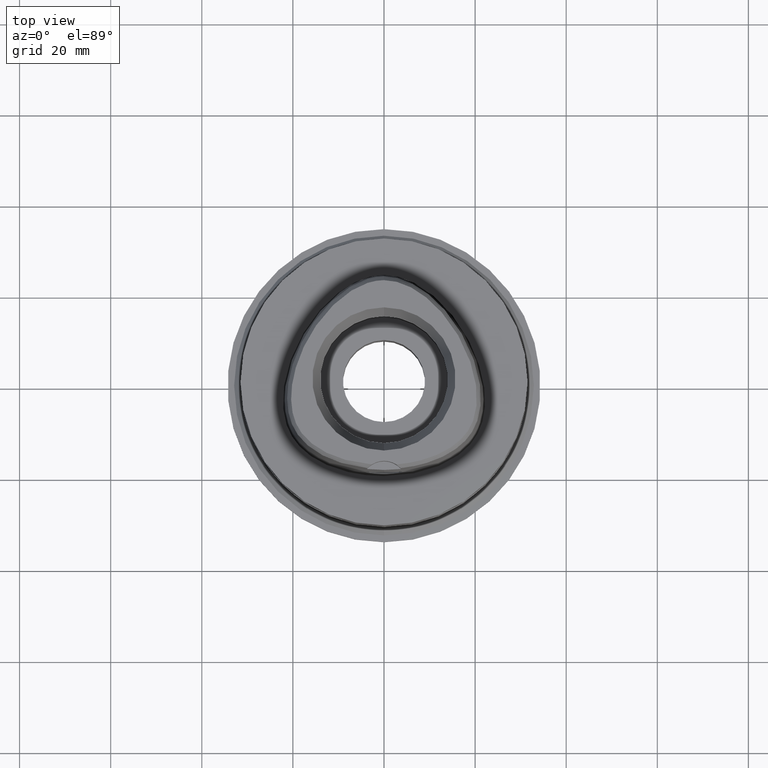
[diagram: clean part render]
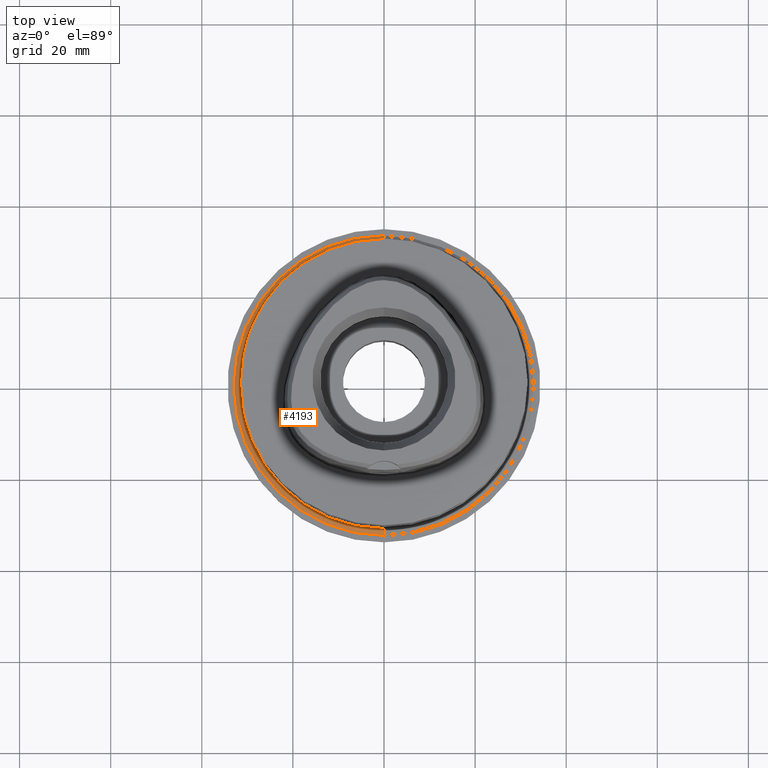
[diagram: same view with one face highlighted and labeled with its STEP entity id]
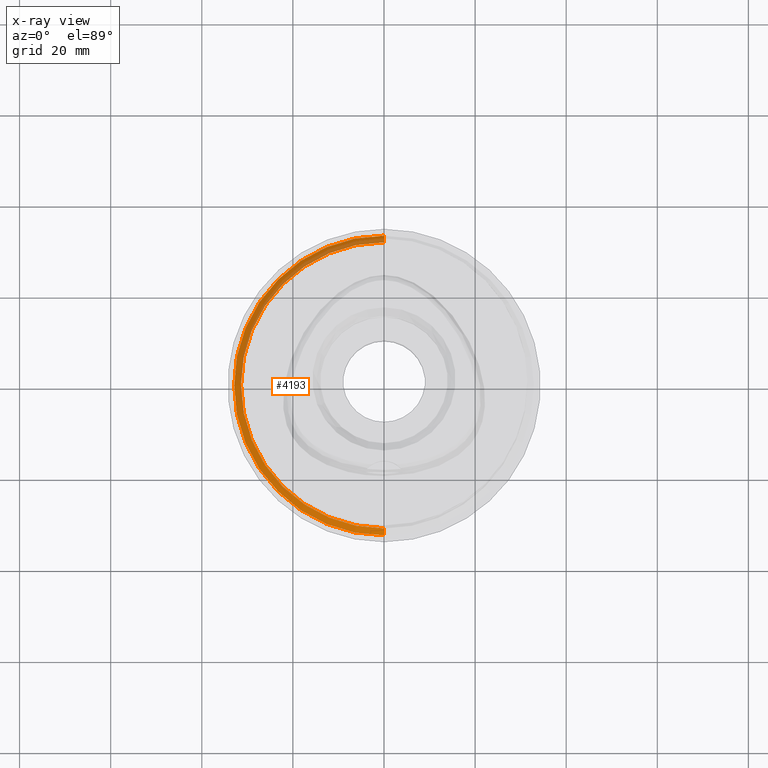
[diagram: x-ray of the same camera — body ghosted, the highlighted face saturated]
A machine part, top view. The second image highlights one B-rep face of the part: STEP entity #4193.
The next image is the same camera in x-ray: the body ghosted, the highlighted face saturated — about 20% of this face is hidden behind the body in this view.
In plain terms, the highlighted conical surface has half-angle 45 deg.
Its self-contained STEP definition (entity closure, byte-faithful):
#567=DIRECTION('',(0.E0,7.071067811866E-1,-7.071067811865E-1));
#568=VECTOR('',#567,2.121320343560E0);
#569=CARTESIAN_POINT('',(0.E0,3.14E1,-4.44E1));
#570=LINE('',#569,#568);
#582=CARTESIAN_POINT('',(0.E0,0.E0,-4.44E1));
#583=DIRECTION('',(0.E0,0.E0,1.E0));
#584=DIRECTION('',(0.E0,1.E0,0.E0));
#585=AXIS2_PLACEMENT_3D('',#582,#583,#584);
#590=DIRECTION('',(0.E0,-7.071067811866E-1,-7.071067811865E-1));
#591=VECTOR('',#590,2.121320343560E0);
#592=CARTESIAN_POINT('',(0.E0,-3.14E1,-4.44E1));
#593=LINE('',#592,#591);
#621=CARTESIAN_POINT('',(0.E0,0.E0,-4.59E1));
#622=DIRECTION('',(0.E0,0.E0,1.E0));
#623=DIRECTION('',(0.E0,1.E0,0.E0));
#624=AXIS2_PLACEMENT_3D('',#621,#622,#623);
#3041=CARTESIAN_POINT('',(0.E0,3.14E1,-4.44E1));
#3042=VERTEX_POINT('',#3041);
#3043=CARTESIAN_POINT('',(0.E0,-3.14E1,-4.44E1));
#3044=VERTEX_POINT('',#3043);
#3045=CARTESIAN_POINT('',(0.E0,3.29E1,-4.59E1));
#3046=VERTEX_POINT('',#3045);
#3047=CARTESIAN_POINT('',(0.E0,-3.29E1,-4.59E1));
#3048=VERTEX_POINT('',#3047);
#4181=CARTESIAN_POINT('',(0.E0,0.E0,-4.515E1));
#4182=DIRECTION('',(0.E0,0.E0,-1.E0));
#4183=DIRECTION('',(0.E0,-1.E0,0.E0));
#4184=AXIS2_PLACEMENT_3D('',#4181,#4182,#4183);
#4185=CONICAL_SURFACE('',#4184,3.215E1,4.5E1);
#4186=ORIENTED_EDGE('',*,*,#4171,.F.);
#4187=ORIENTED_EDGE('',*,*,#4148,.T.);
#4188=ORIENTED_EDGE('',*,*,#4175,.T.);
#4190=ORIENTED_EDGE('',*,*,#4189,.F.);
#4191=EDGE_LOOP('',(#4186,#4187,#4188,#4190));
#4192=FACE_OUTER_BOUND('',#4191,.F.);
#586=CIRCLE('',#585,3.14E1);
#625=CIRCLE('',#624,3.29E1);
#4148=EDGE_CURVE('',#3042,#3044,#586,.T.);
#4171=EDGE_CURVE('',#3042,#3046,#570,.T.);
#4175=EDGE_CURVE('',#3044,#3048,#593,.T.);
#4189=EDGE_CURVE('',#3046,#3048,#625,.T.);
#4193=ADVANCED_FACE('',(#4192),#4185,.T.);